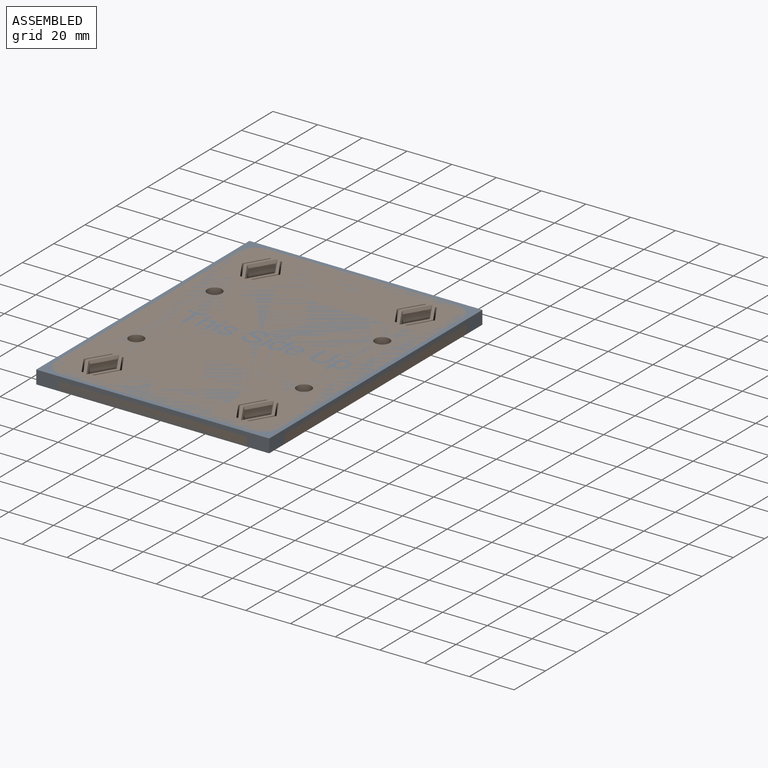
[diagram: assembled view]
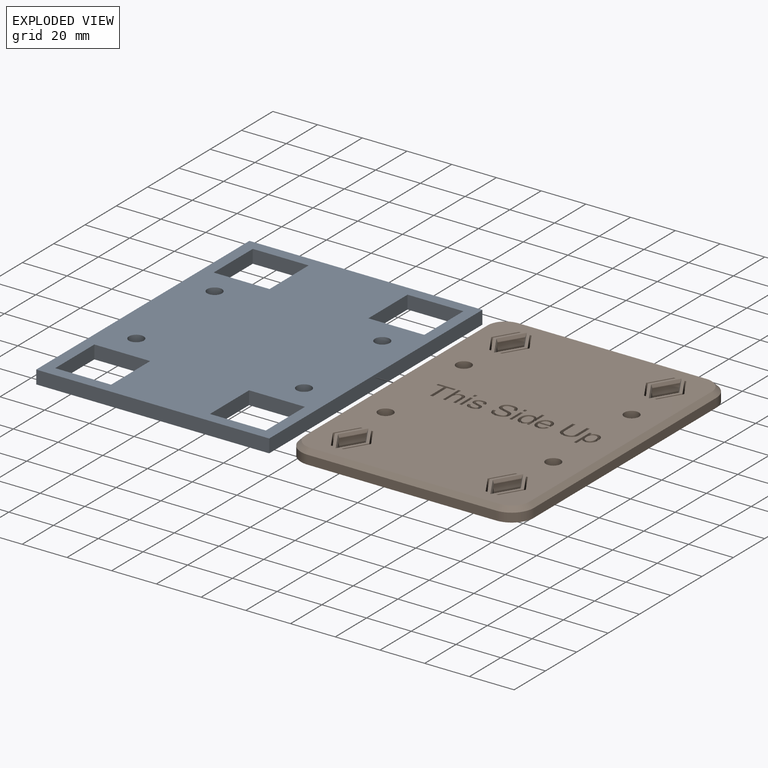
[diagram: exploded view]
GUIDED TOUR — FREECAD ASSEMBLY "DockLink-Base-plate_opticalTable_M6_grid25mm"

This assembly has 2 components, labeled P0..P1 below (a component is one placed body or linked part; the same part can appear more than once), held together by 0 modeled joints plus 1 derived contact edge. A joint is a constraint between two components; its type names the relative motion it leaves free:
  CONTACT — a derived adjacency edge — the two components touch in the source model (clearance under 2% of the assembly's diagonal); it is measured from the geometry, not a modeled constraint.
Axis/direction vectors are unit vectors and 'through' points are millimeter coordinates, both in the assembly's world frame.

MATES
  1. CONTACT "contact_0_1": P0 <-> P1, contact direction (1.000, 0.000, 0.000) through (-39.92, -27.24, 0.00) mm (derived from contact, not a modeled constraint)

ASSEMBLY ORDER
  1. P0 — the base component [order heuristic]
  2. P1 [order heuristic]
Order-tag legend:
  [order heuristic] — this assembly is geometrically interlocked (no collision-free removal order exists), so components are listed in mate-graph order; insertion feasibility is not verified.

Of the 2 components, 2 carry a construction recipe — the FreeCAD feature program (sketches with constraints, then the solid features that consume them) that regenerates the part from scratch, quoted from this document or from the linked companion document it references; the rest are supplied as boundary geometry only. The tour below walks the components in assembly order: each is shown spotlighted twice — in the assembled view, then in the exploded view, where a leader line traces a displaced component back to its assembled socket (components that stay in place when exploded have no leader line; saturated green if recipe-attached, orange if geometry-only; every other component desaturated gray) — followed by its recipe or geometry summary and the mates that hold it.
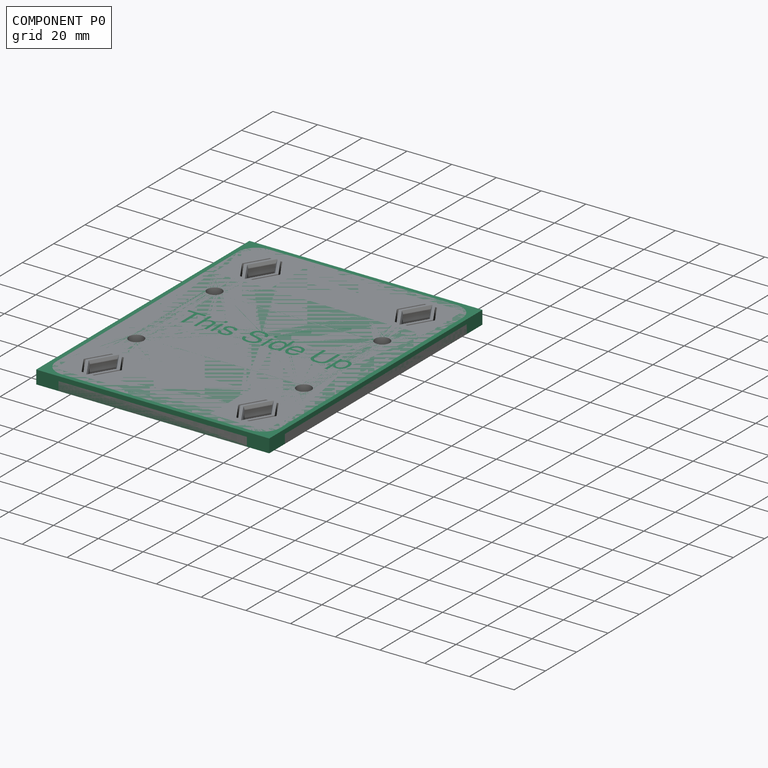
[diagram: component P0 — assembled]
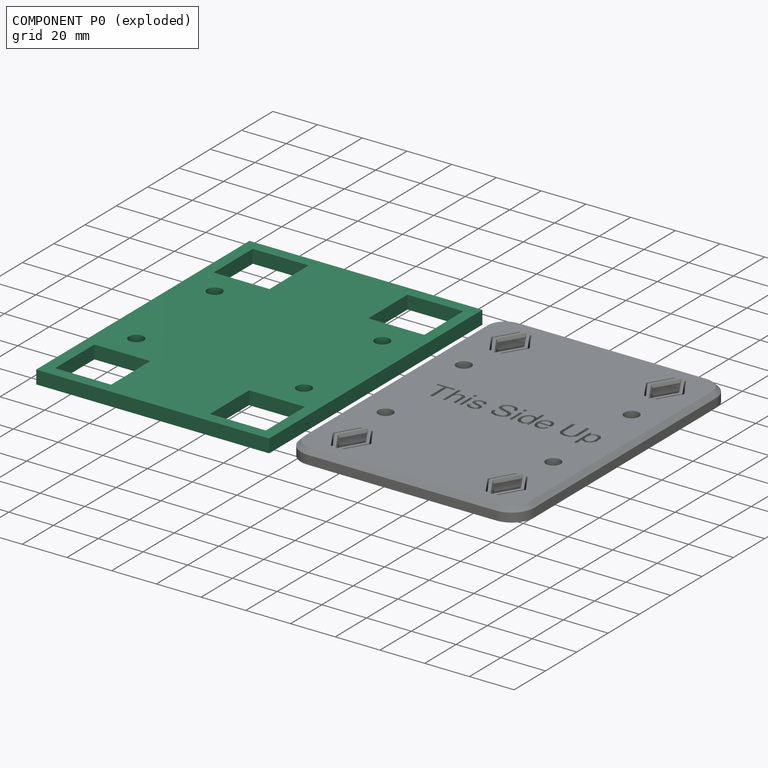
[diagram: component P0 — exploded]
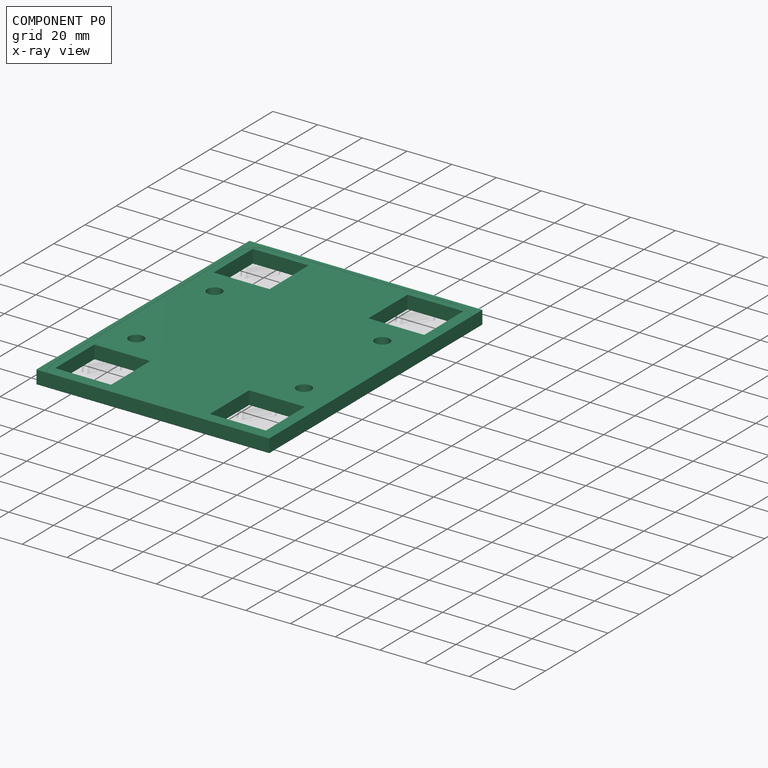
[diagram: component P0 — x-ray view]
COMPONENT P0 — recipe-attached ("DockLink-Base-plate_opticalTable_M6_grid25mm", modeled in this document).
Held by: resting contact with P1 (derived edge).
Construction recipe (the document's own serialized feature program — sketch geometry with constraints, then the solid features built on it; lengths are millimeters unless a unit is written):

FEATURE [Sketcher::SketchObject] Sketch
  ArcFitTolerance = 1e-06
  AttachmentSupport = -> [Origin]
  ExternalTypes = [0]
  FullyConstrained = true
  MakeInternals = false
  MapMode = 5
  sketch-geometry (30):
    g0: LineSegment StartX=-52.105 StartY=68.1 StartZ=0 EndX=-52.105 EndY=-68.1 EndZ=0
    g1: LineSegment StartX=-52.105 StartY=-68.1 StartZ=0 EndX=52.105 EndY=-68.1 EndZ=0
    g2: LineSegment StartX=52.105 StartY=-68.1 StartZ=0 EndX=52.105 EndY=68.1 EndZ=0
    g3: LineSegment StartX=52.105 StartY=68.1 StartZ=0 EndX=-52.105 EndY=68.1 EndZ=0
    g4: GeomPoint [constr] X=0 Y=0 Z=0
    g5: LineSegment [constr] StartX=-34.605 StartY=50.6 StartZ=0 EndX=-34.605 EndY=-50.6 EndZ=0
    g6: LineSegment [constr] StartX=-34.605 StartY=-50.6 StartZ=0 EndX=34.605 EndY=-50.6 EndZ=0
    g7: LineSegment [constr] StartX=34.605 StartY=-50.6 StartZ=0 EndX=34.605 EndY=50.6 EndZ=0
    g8: LineSegment [constr] StartX=34.605 StartY=50.6 StartZ=0 EndX=-34.605 EndY=50.6 EndZ=0
    g9: GeomPoint [constr] X=0 Y=0 Z=0
    g10: LineSegment [constr] StartX=-47.105 StartY=63.1 StartZ=0 EndX=-47.105 EndY=38.1 EndZ=0
    g11: LineSegment [constr] StartX=-47.105 StartY=38.1 StartZ=0 EndX=-22.105 EndY=38.1 EndZ=0
    g12: LineSegment [constr] StartX=-22.105 StartY=38.1 StartZ=0 EndX=-22.105 EndY=63.1 EndZ=0
    g13: LineSegment [constr] StartX=-22.105 StartY=63.1 StartZ=0 EndX=-47.105 EndY=63.1 EndZ=0
    g14: GeomPoint [constr] X=-34.605 Y=50.6 Z=0
    g15: LineSegment [constr] StartX=22.105 StartY=63.1 StartZ=0 EndX=22.105 EndY=38.1 EndZ=0
    g16: LineSegment [constr] StartX=22.105 StartY=38.1 StartZ=0 EndX=47.105 EndY=38.1 EndZ=0
    g17: LineSegment [constr] StartX=47.105 StartY=38.1 StartZ=0 EndX=47.105 EndY=63.1 EndZ=0
    g18: LineSegment [constr] StartX=47.105 StartY=63.1 StartZ=0 EndX=22.105 EndY=63.1 EndZ=0
    g19: GeomPoint [constr] X=34.605 Y=50.6 Z=0
    g20: LineSegment [constr] StartX=22.105 StartY=-38.1 StartZ=0 EndX=22.105 EndY=-63.1 EndZ=0
    g21: LineSegment [constr] StartX=22.105 StartY=-63.1 StartZ=0 EndX=47.105 EndY=-63.1 EndZ=0
    g22: LineSegment [constr] StartX=47.105 StartY=-63.1 StartZ=0 EndX=47.105 EndY=-38.1 EndZ=0
    g23: LineSegment [constr] StartX=47.105 StartY=-38.1 StartZ=0 EndX=22.105 EndY=-38.1 EndZ=0
    g24: GeomPoint [constr] X=34.605 Y=-50.6 Z=0
    g25: LineSegment [constr] StartX=-22.105 StartY=-38.1 StartZ=0 EndX=-47.105 EndY=-38.1 EndZ=0
    g26: LineSegment [constr] StartX=-47.105 StartY=-38.1 StartZ=0 EndX=-47.105 EndY=-63.1 EndZ=0
    g27: LineSegment [constr] StartX=-47.105 StartY=-63.1 StartZ=0 EndX=-22.105 EndY=-63.1 EndZ=0
    g28: LineSegment [constr] StartX=-22.105 StartY=-63.1 StartZ=0 EndX=-22.105 EndY=-38.1 EndZ=0
    g29: GeomPoint [constr] X=-34.605 Y=-50.6 Z=0
  constraints (72):
    c: Coincident(g0,g1)
    c: Coincident(g1,g2)
    c: Coincident(g2,g3)
    c: Coincident(g3,g0)
    c: Vertical(g0)
    c: Vertical(g2)
    c: Horizontal(g1)
    c: Horizontal(g3)
    c: Symmetric(g2,g0,g4)
    c: Coincident(g4,g-1)
    c: Coincident(g5,g6)
    c: Coincident(g6,g7)
    c: Coincident(g7,g8)
    c: Coincident(g8,g5)
    c: Vertical(g5)
    c: Vertical(g7)
    c: Horizontal(g6)
    c: Horizontal(g8)
    c: Symmetric(g7,g5,g9)
    c: Coincident(g9,g4)
    c: DistanceX(g8,g8) = 69.21
    c: DistanceY(g7,g7) = 101.2
    c: Coincident(g10,g11)
    c: Coincident(g11,g12)
    c: Coincident(g12,g13)
    c: Coincident(g13,g10)
    c: Vertical(g10)
    c: Vertical(g12)
    c: Horizontal(g11)
    c: Horizontal(g13)
    c: Symmetric(g12,g10,g14)
    c: Coincident(g14,g5)
    c: Coincident(g15,g16)
    c: Coincident(g16,g17)
    c: Coincident(g17,g18)
    c: Coincident(g18,g15)
    c: Vertical(g15)
    c: Vertical(g17)
    c: Horizontal(g16)
    c: Horizontal(g18)
    c: Symmetric(g17,g15,g19)
    c: Coincident(g19,g7)
    c: Coincident(g20,g21)
    c: Coincident(g21,g22)
    c: Coincident(g22,g23)
    c: Coincident(g23,g20)
    c: Vertical(g20)
    c: Vertical(g22)
    c: Horizontal(g21)
    c: Horizontal(g23)
    c: Symmetric(g22,g20,g24)
    c: Coincident(g24,g6)
    c: Coincident(g25,g26)
    c: Coincident(g26,g27)
    c: Coincident(g27,g28)
    c: Coincident(g28,g25)
    c: Horizontal(g25)
    c: Horizontal(g27)
    c: Vertical(g26)
    c: Vertical(g28)
    c: Symmetric(g27,g25,g29)
    c: Coincident(g29,g5)
    c: Equal(g11,g12)
    c: Equal(g16,g12)
    c: Equal(g15,g16)
    c: Equal(g16,g23)
    c: Equal(g23,g20)
    c: Equal(g20,g28)
    c: Equal(g25,g28)
    c: Distance(g25,g25) = 25
    c: Distance(g10,g0) = 5
    c: Distance(g18,g3) = 5
FEATURE [PartDesign::Pad] Pad
  Direction = (0,0,1)
  Length = 6
  Length2 = 10
  Profile = -> Sketch
  ReferenceAxis = -> Sketch [N_Axis]
  Refine = true
  SideType = 0
  Suppressed = false
  Type = 0
  Type2 = 0
FEATURE [Sketcher::SketchObject] Sketch001  label="Sketch_DockLink_positions"
  ArcFitTolerance = 1e-06
  AttachmentSupport = -> [Pad]
  ExternalTypes = [0]
  FullyConstrained = true
  MakeInternals = false
  MapMode = 5
  Placement = pos=(0,0,6) rot=(0,0,1;0rad)
  sketch-geometry (25):
    g0: LineSegment [constr] StartX=-34.605 StartY=50.6 StartZ=0 EndX=-34.605 EndY=-50.6 EndZ=0
    g1: LineSegment [constr] StartX=-34.605 StartY=-50.6 StartZ=0 EndX=34.605 EndY=-50.6 EndZ=0
    g2: LineSegment [constr] StartX=34.605 StartY=-50.6 StartZ=0 EndX=34.605 EndY=50.6 EndZ=0
    g3: LineSegment [constr] StartX=34.605 StartY=50.6 StartZ=0 EndX=-34.605 EndY=50.6 EndZ=0
    g4: GeomPoint [constr] X=0 Y=1e-16 Z=0
    g5: LineSegment StartX=-47.105 StartY=63.1 StartZ=0 EndX=-47.105 EndY=38.1 EndZ=0
    g6: LineSegment StartX=-47.105 StartY=38.1 StartZ=0 EndX=-22.105 EndY=38.1 EndZ=0
    g7: LineSegment StartX=-22.105 StartY=38.1 StartZ=0 EndX=-22.105 EndY=63.1 EndZ=0
    g8: LineSegment StartX=-22.105 StartY=63.1 StartZ=0 EndX=-47.105 EndY=63.1 EndZ=0
    g9: GeomPoint [constr] X=-34.605 Y=50.6 Z=0
    g10: LineSegment StartX=22.105 StartY=63.1 StartZ=0 EndX=22.105 EndY=38.1 EndZ=0
    g11: LineSegment StartX=22.105 StartY=38.1 StartZ=0 EndX=47.105 EndY=38.1 EndZ=0
    g12: LineSegment StartX=47.105 StartY=38.1 StartZ=0 EndX=47.105 EndY=63.1 EndZ=0
    g13: LineSegment StartX=47.105 StartY=63.1 StartZ=0 EndX=22.105 EndY=63.1 EndZ=0
    g14: GeomPoint [constr] X=34.605 Y=50.6 Z=0
    g15: LineSegment StartX=-47.105 StartY=-38.1 StartZ=0 EndX=-47.105 EndY=-63.1 EndZ=0
    g16: LineSegment StartX=-47.105 StartY=-63.1 StartZ=0 EndX=-22.105 EndY=-63.1 EndZ=0
    g17: LineSegment StartX=-22.105 StartY=-63.1 StartZ=0 EndX=-22.105 EndY=-38.1 EndZ=0
    g18: LineSegment StartX=-22.105 StartY=-38.1 StartZ=0 EndX=-47.105 EndY=-38.1 EndZ=0
    g19: GeomPoint [constr] X=-34.605 Y=-50.6 Z=0
    g20: LineSegment StartX=22.105 StartY=-38.1 StartZ=0 EndX=22.105 EndY=-63.1 EndZ=0
    g21: LineSegment StartX=22.105 StartY=-63.1 StartZ=0 EndX=47.105 EndY=-63.1 EndZ=0
    g22: LineSegment StartX=47.105 StartY=-63.1 StartZ=0 EndX=47.105 EndY=-38.1 EndZ=0
    g23: LineSegment StartX=47.105 StartY=-38.1 StartZ=0 EndX=22.105 EndY=-38.1 EndZ=0
    g24: GeomPoint [constr] X=34.605 Y=-50.6 Z=0
  constraints (60):
    c: Coincident(g0,g1)
    c: Coincident(g1,g2)
    c: Coincident(g2,g3)
    c: Coincident(g3,g0)
    c: Vertical(g0)
    c: Vertical(g2)
    c: Horizontal(g1)
    c: Horizontal(g3)
    c: Symmetric(g2,g0,g4)
    c: Coincident(g4,g-1)
    c: DistanceY(g2,g2) = 101.2
    c: DistanceX(g3,g3) = 69.21
    c: Coincident(g5,g6)
    c: Coincident(g6,g7)
    c: Coincident(g7,g8)
    c: Coincident(g8,g5)
    c: Vertical(g5)
    c: Vertical(g7)
    c: Horizontal(g6)
    c: Horizontal(g8)
    c: Symmetric(g7,g5,g9)
    c: Coincident(g9,g0)
    c: Coincident(g10,g11)
    c: Coincident(g11,g12)
    c: Coincident(g12,g13)
    c: Coincident(g13,g10)
    c: Vertical(g10)
    c: Vertical(g12)
    c: Horizontal(g11)
    c: Horizontal(g13)
    c: Symmetric(g12,g10,g14)
    c: Coincident(g14,g2)
    c: Coincident(g15,g16)
    c: Coincident(g16,g17)
    c: Coincident(g17,g18)
    c: Coincident(g18,g15)
    c: Vertical(g15)
    c: Vertical(g17)
    c: Horizontal(g16)
    c: Horizontal(g18)
    c: Symmetric(g17,g15,g19)
    c: Coincident(g19,g0)
    c: Coincident(g20,g21)
    c: Coincident(g21,g22)
    c: Coincident(g22,g23)
    c: Coincident(g23,g20)
    c: Vertical(g20)
    c: Vertical(g22)
    c: Horizontal(g21)
    c: Horizontal(g23)
    c: Symmetric(g22,g20,g24)
    c: Coincident(g24,g1)
    c: Equal(g7,g8)
    c: Equal(g7,g10)
    c: Equal(g10,g13)
    c: Equal(g23,g11)
    c: Equal(g23,g20)
    c: Equal(g20,g17)
    c: Equal(g18,g17)
    c: Distance(g18,g18) = 25
FEATURE [PartDesign::Pocket] Pocket
  BaseFeature = -> Pad
  Direction = (0,0,-1)
  Length = 5
  Length2 = 5
  Profile = -> Sketch001
  ReferenceAxis = -> Sketch001 [N_Axis]
  Refine = true
  SideType = 0
  Suppressed = false
  Type = 1
  Type2 = 0
FEATURE [Sketcher::SketchObject] Sketch002  label="Sketch_M6_hole"
  ArcFitTolerance = 1e-06
  AttachmentSupport = -> [Pocket]
  ExternalTypes = [0]
  FullyConstrained = true
  MakeInternals = false
  MapMode = 5
  Placement = pos=(0,0,6) rot=(0,0,1;0rad)
  sketch-geometry (9):
    g0: LineSegment [constr] StartX=-37.5 StartY=25 StartZ=0 EndX=-37.5 EndY=-25 EndZ=0
    g1: LineSegment [constr] StartX=-37.5 StartY=-25 StartZ=0 EndX=37.5 EndY=-25 EndZ=0
    g2: LineSegment [constr] StartX=37.5 StartY=-25 StartZ=0 EndX=37.5 EndY=25 EndZ=0
    g3: LineSegment [constr] StartX=37.5 StartY=25 StartZ=0 EndX=-37.5 EndY=25 EndZ=0
    g4: GeomPoint [constr] X=0 Y=0 Z=0
    g5: Circle CenterX=-37.5 CenterY=25 CenterZ=0 NormalX=0 NormalY=0 NormalZ=1 AngleXU=0 Radius=3.3
    g6: Circle CenterX=37.5 CenterY=25 CenterZ=0 NormalX=0 NormalY=0 NormalZ=1 AngleXU=0 Radius=3.3
    g7: Circle CenterX=37.5 CenterY=-25 CenterZ=0 NormalX=0 NormalY=0 NormalZ=1 AngleXU=0 Radius=3.3
    g8: Circle CenterX=-37.5 CenterY=-25 CenterZ=0 NormalX=0 NormalY=0 NormalZ=1 AngleXU=0 Radius=3.3
  constraints (20):
    c: Vertical(g0)
    c: Vertical(g2)
    c: Horizontal(g1)
    c: Horizontal(g3)
    c: Symmetric(g2,g0,g4)
    c: Coincident(g4,g-1)
    c: DistanceY(g2,g2) = 50
    c: Distance(g1,g1) = 75
    c: Coincident(g5,g0)
    c: Coincident(g6,g2)
    c: Coincident(g7,g1)
    c: Coincident(g8,g0)
    c: Equal(g8,g5)
    c: Equal(g5,g6)
    c: Equal(g6,g7)
    c: Diameter(g7) = 6.6
    c: Coincident(g3,g0)
    c: Coincident(g3,g2)
    c: Coincident(g1,g0)
    c: Coincident(g2,g1)
FEATURE [PartDesign::Pocket] Pocket001
  BaseFeature = -> Pocket
  Direction = (0,0,-1)
  Length = 5
  Length2 = 5
  Profile = -> Sketch002
  ReferenceAxis = -> Sketch002 [N_Axis]
  Refine = true
  SideType = 0
  Suppressed = false
  Type = 1
  Type2 = 0
FEATURE [PartDesign::Body] Body  label="DockLink-Base-plate_opticalTable_M6_grid25mm"
  AllowCompound = true
  Group = -> [Sketch,Pad,Sketch001,Pocket,Sketch002,Pocket001]
  Origin = -> Origin
  Tip = -> Pocket001
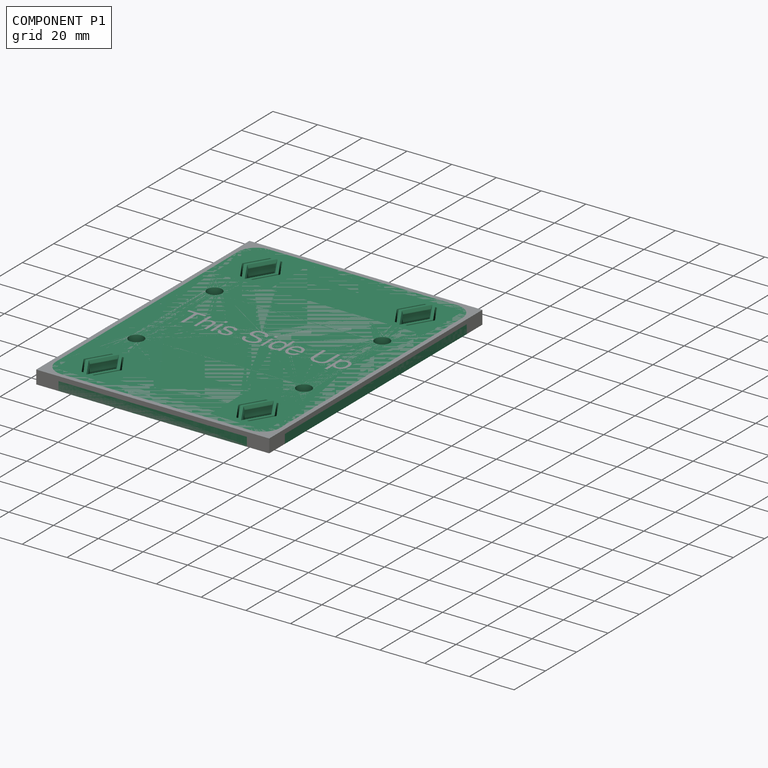
[diagram: component P1 — assembled]
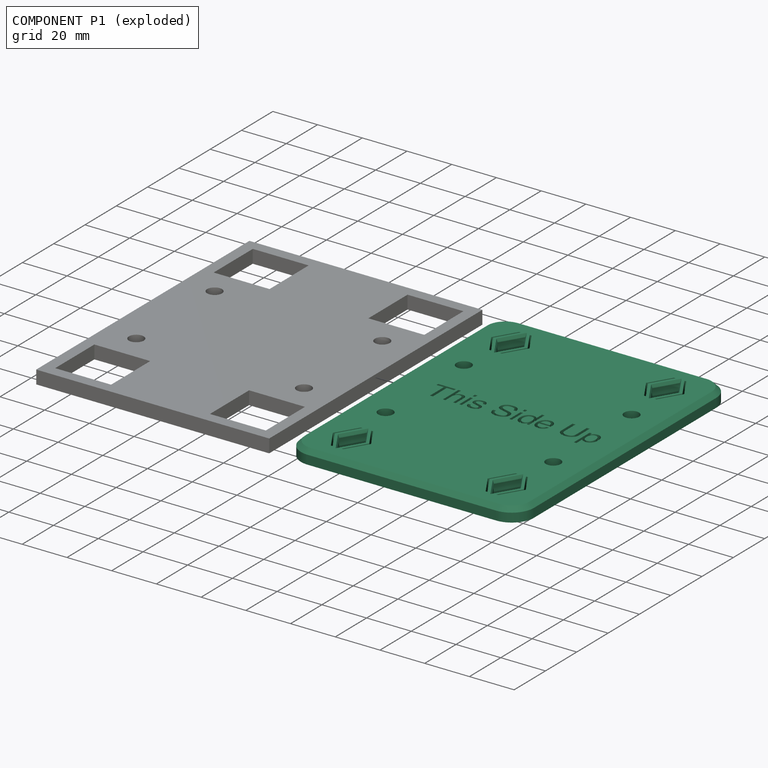
[diagram: component P1 — exploded]
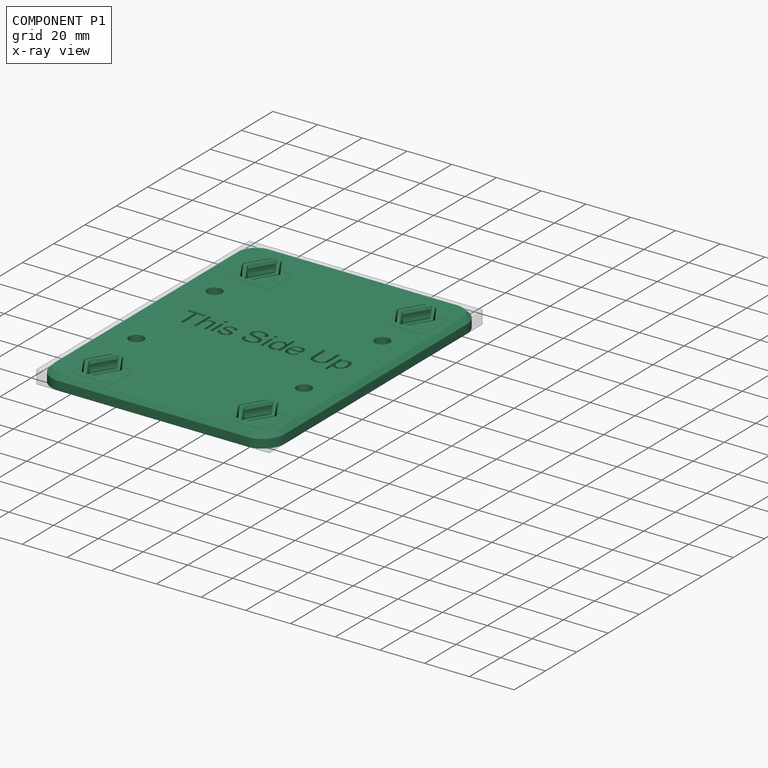
[diagram: component P1 — x-ray view]
COMPONENT P1 — recipe-attached ("Body", modeled in this document).
Held by: resting contact with P0 (derived edge).
Construction recipe (the document's own serialized feature program — sketch geometry with constraints, then the solid features built on it; lengths are millimeters unless a unit is written):

FEATURE [PartDesign::FeatureBase] BaseFeature
  BaseFeature = -> Fusion
  Suppressed = false
FEATURE [PartDesign::Fillet] Fillet
  Base = -> BaseFeature [Edge5,Edge1,Edge2,Edge8]
  BaseFeature = -> BaseFeature
  Radius = 10
  Refine = true
  SupportTransform = false
  Suppressed = false
  UseAllEdges = false
FEATURE [PartDesign::Chamfer] Chamfer
  Angle = 45
  Base = -> Fillet [Edge4]
  BaseFeature = -> Fillet
  ChamferType = 0
  FlipDirection = false
  Refine = true
  Size = 2
  Size2 = 1
  SupportTransform = false
  Suppressed = false
  UseAllEdges = false
FEATURE [Part::Part2DObjectPython] ShapeString  label="ShapeString001"  # Draft 2D object (typed FeaturePython)
  FontFile = <path>
  Fuse = false
  Justification = 6
  JustificationReference = 0
  KeepLeftMargin = false
  MakeFace = true
  ObliqueAngle = 0
  Placement = pos=(-35.7992,-3.80334,6) rot=(0,0,1;0rad)
  ScaleToSize = true
  Size = 10
  String = This Side Up
  Tracking = 0
FEATURE [PartDesign::Pocket] Pocket002
  BaseFeature = -> Chamfer
  Direction = (0,0,-1)
  Length = 2
  Length2 = 5
  Profile = -> ShapeString
  ReferenceAxis = -> ShapeString [N_Axis]
  Refine = true
  SideType = 0
  Suppressed = false
  Type = 0
  Type2 = 0
FEATURE [PartDesign::Body] Body001  label="Body"
  AllowCompound = true
  BaseFeature = -> Fusion
  Group = -> [BaseFeature,Fillet,Chamfer,ShapeString,Pocket002]
  Origin = -> Origin006
  Tip = -> Pocket002
PROVENANCE & LICENSES
Assembly and component geometry: a FreeCAD (.FCStd) document from a public repository crawl; components, placements and joints were extracted with FreeCAD and each solid tessellated.
Construction recipes: the document's own serialized feature recipes (and, for linked parts, the recipes of companion documents from the same project).
License: mit.
Joints: native FreeCAD joints and A2plus constraints are mapped to standard mate types; edges marked 'derived from contact' connect touching components and are measured from the geometry, not modeled.
Verification: 2 of this assembly's 2 components carry a construction recipe (2 from this document itself); the rest are geometry-only. Every component's tessellation passed the extraction mesh gates (mesh-volume checksum against the B-rep where available, bounding-box inflation <= 2%).
Renders: orthographic iso camera (az 35 / el 25); the floor grid conveys scale (grid pitch printed in each image; no ruler). In the exploded view each component is displaced by its stored offset vector: the offsets alone carry the explosion direction (mate normal/axis signs are not orientation cues and do not encode it), and separation distances are assigned per mate-chain, not proportionally to assembly-order depth.
